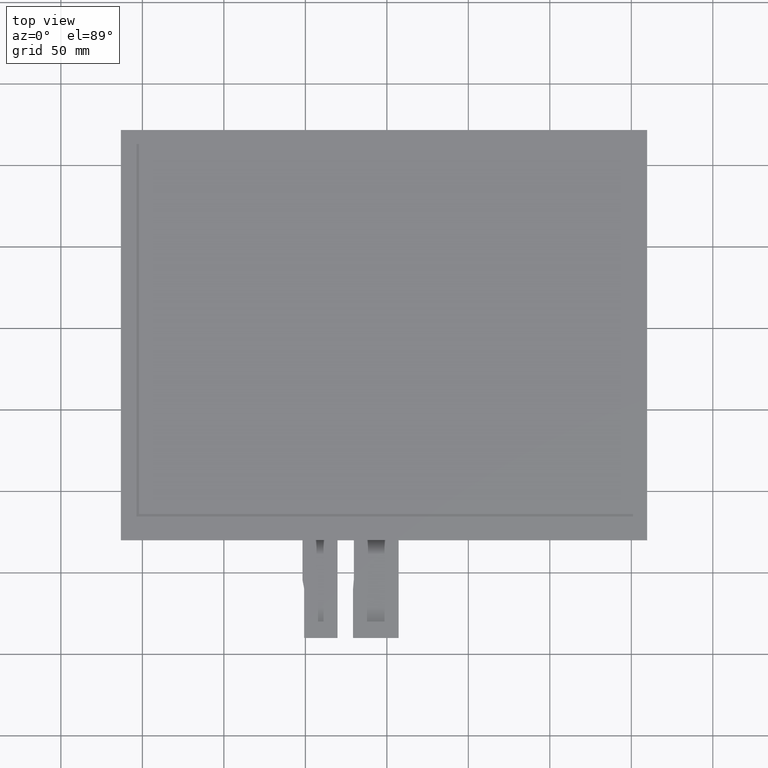
[diagram: clean part render]
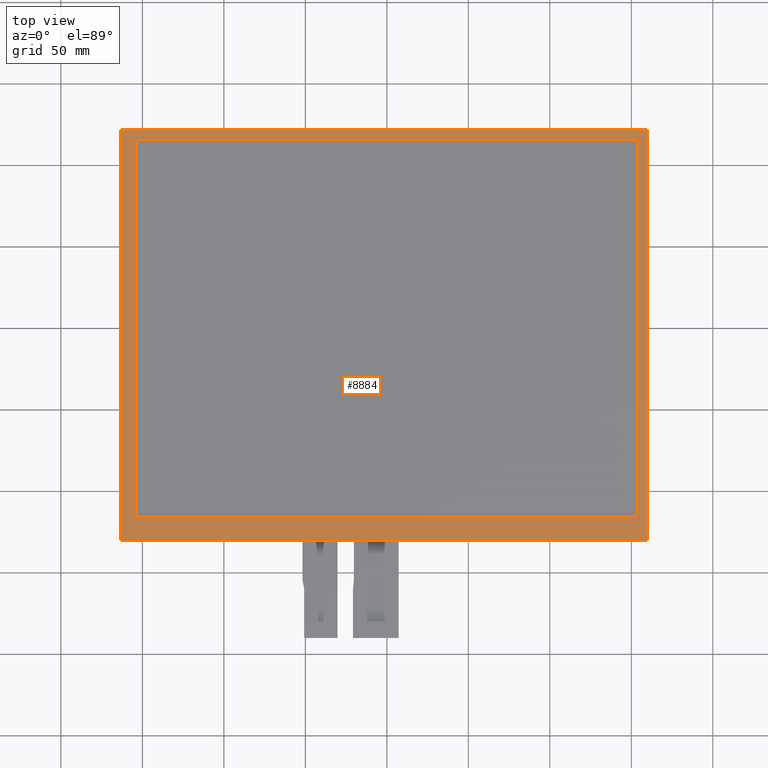
[diagram: same view with one face highlighted and labeled with its STEP entity id]
A machine part, top view. The second image highlights one B-rep face of the part: STEP entity #8884.
In plain terms, the highlighted planar face has unit normal (0, 0, 1).
Its self-contained STEP definition (entity closure, byte-faithful):
#132=FACE_BOUND('',#1392,.T.);
#546=PLANE('',#9334);
#968=FACE_OUTER_BOUND('',#1391,.T.);
#1391=EDGE_LOOP('',(#8425,#8426,#8427,#8428));
#1392=EDGE_LOOP('',(#8429,#8430,#8431,#8432));
#2617=LINE('',#13897,#3857);
#2621=LINE('',#13905,#3861);
#2624=LINE('',#13911,#3864);
#2627=LINE('',#13916,#3867);
#2629=LINE('',#13922,#3869);
#2630=LINE('',#13924,#3870);
#2631=LINE('',#13926,#3871);
#2632=LINE('',#13927,#3872);
#3857=VECTOR('',#11397,10.);
#3861=VECTOR('',#11403,10.);
#3864=VECTOR('',#11408,10.);
#3867=VECTOR('',#11413,10.);
#3869=VECTOR('',#11419,10.);
#3870=VECTOR('',#11420,10.);
#3871=VECTOR('',#11421,10.);
#3872=VECTOR('',#11422,10.);
#4705=VERTEX_POINT('',#13895);
#4706=VERTEX_POINT('',#13896);
#4709=VERTEX_POINT('',#13904);
#4711=VERTEX_POINT('',#13910);
#4713=VERTEX_POINT('',#13920);
#4714=VERTEX_POINT('',#13921);
#4715=VERTEX_POINT('',#13923);
#4716=VERTEX_POINT('',#13925);
#5945=EDGE_CURVE('',#4705,#4706,#2617,.T.);
#5949=EDGE_CURVE('',#4709,#4705,#2621,.T.);
#5952=EDGE_CURVE('',#4711,#4709,#2624,.T.);
#5955=EDGE_CURVE('',#4706,#4711,#2627,.T.);
#5957=EDGE_CURVE('',#4713,#4714,#2629,.T.);
#5958=EDGE_CURVE('',#4714,#4715,#2630,.T.);
#5959=EDGE_CURVE('',#4715,#4716,#2631,.T.);
#5960=EDGE_CURVE('',#4716,#4713,#2632,.T.);
#8425=ORIENTED_EDGE('',*,*,#5957,.T.);
#8426=ORIENTED_EDGE('',*,*,#5958,.T.);
#8427=ORIENTED_EDGE('',*,*,#5959,.T.);
#8428=ORIENTED_EDGE('',*,*,#5960,.T.);
#8429=ORIENTED_EDGE('',*,*,#5945,.T.);
#8430=ORIENTED_EDGE('',*,*,#5955,.T.);
#8431=ORIENTED_EDGE('',*,*,#5952,.T.);
#8432=ORIENTED_EDGE('',*,*,#5949,.T.);
#8884=ADVANCED_FACE('',(#968,#132),#546,.T.);
#9334=AXIS2_PLACEMENT_3D('',#13919,#11417,#11418);
#11397=DIRECTION('',(-7.67988257414721E-17,1.,0.));
#11403=DIRECTION('',(-1.,-1.15572988900472E-16,0.));
#11408=DIRECTION('',(7.67988257414721E-17,-1.,0.));
#11413=DIRECTION('',(1.,0.,0.));
#11417=DIRECTION('center_axis',(0.,0.,1.));
#11418=DIRECTION('ref_axis',(1.,0.,0.));
#11419=DIRECTION('',(-1.,0.,0.));
#11420=DIRECTION('',(2.82297471497855E-16,-1.,0.));
#11421=DIRECTION('',(1.,1.10025199095711E-16,0.));
#11422=DIRECTION('',(-7.05743678744637E-17,1.,0.));
#13895=CARTESIAN_POINT('',(-153.7,-115.65,0.));
#13896=CARTESIAN_POINT('',(-153.7,115.65,0.));
#13897=CARTESIAN_POINT('',(-153.7,-59.925,0.));
#13904=CARTESIAN_POINT('',(153.7,-115.65,0.));
#13905=CARTESIAN_POINT('',(75.975,-115.65,0.));
#13910=CARTESIAN_POINT('',(153.7,115.65,0.));
#13911=CARTESIAN_POINT('',(153.7,55.725,0.));
#13916=CARTESIAN_POINT('',(-77.7250000000001,115.65,0.));
#13919=CARTESIAN_POINT('Origin',(-1.75000000000004,-4.2,0.));
#13920=CARTESIAN_POINT('',(159.7,121.65,0.));
#13921=CARTESIAN_POINT('',(-163.2,121.65,0.));
#13922=CARTESIAN_POINT('',(159.7,121.65,0.));
#13923=CARTESIAN_POINT('',(-163.2,-130.05,0.));
#13924=CARTESIAN_POINT('',(-163.2,121.65,0.));
#13925=CARTESIAN_POINT('',(159.7,-130.05,0.));
#13926=CARTESIAN_POINT('',(-163.2,-130.05,0.));
#13927=CARTESIAN_POINT('',(159.7,-130.05,0.));